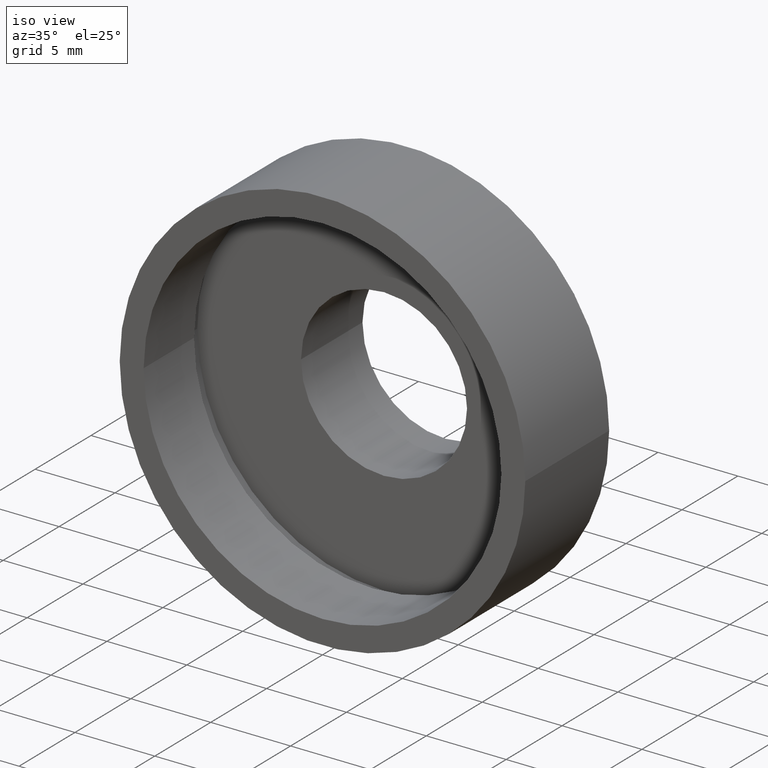
[diagram: clean part render]
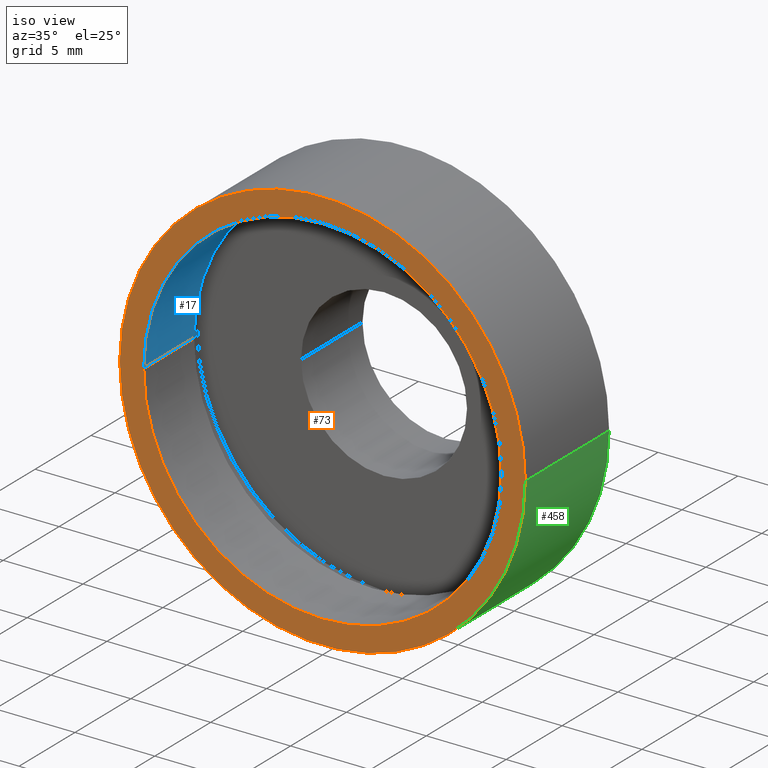
[diagram: same view with three faces highlighted in distinct colors, each labeled with its STEP entity id]
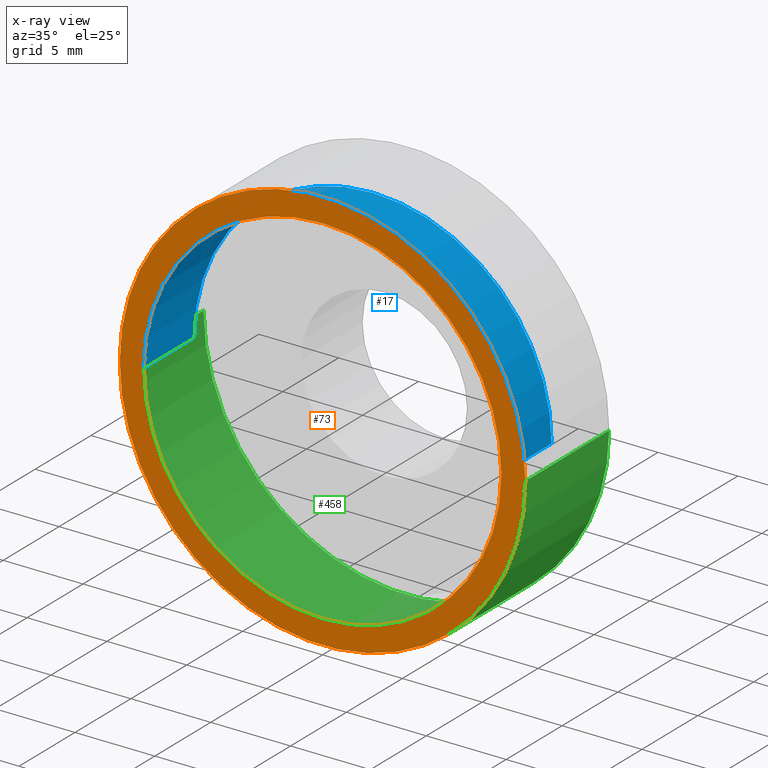
[diagram: x-ray of the same camera — body ghosted, the three highlighted faces saturated]
A machine part, iso view with three faces highlighted in distinct colors.
The next image is the same camera in x-ray (body ghosted, the three faces saturated) — at least one of them is partly hidden behind the body in this view.
Their STEP definitions:

[orange] entity #73 — the highlighted planar face has unit normal (-0, 1, 0).
#36 = CARTESIAN_POINT ( 'NONE',  ( 12.70000000000000500, -1.914145517036478500E-015, 1.555301434917138800E-015 ) ) ;
#51 = DIRECTION ( 'NONE',  ( -1.224646799147351000E-016, 1.000000000000000000, -0.0000000000000000000 ) ) ;
#58 = AXIS2_PLACEMENT_3D ( 'NONE', #191, #242, #511 ) ;
#73 = ADVANCED_FACE ( 'NONE', ( #519, #133 ), #309, .F. ) ;
#94 = CARTESIAN_POINT ( 'NONE',  ( 2.067940818438636500E-015, -3.469446951953614200E-015, 0.0000000000000000000 ) ) ;
#95 = VERTEX_POINT ( 'NONE', #107 ) ;
#104 = AXIS2_PLACEMENT_3D ( 'NONE', #215, #306, #152 ) ;
#107 = CARTESIAN_POINT ( 'NONE',  ( -12.69999999999999900, -5.024748386870749500E-015, 0.0000000000000000000 ) ) ;
#114 = AXIS2_PLACEMENT_3D ( 'NONE', #94, #249, #429 ) ;
#115 = EDGE_CURVE ( 'NONE', #457, #95, #551, .T. ) ;
#124 = VERTEX_POINT ( 'NONE', #322 ) ;
#133 = FACE_BOUND ( 'NONE', #504, .T. ) ;
#146 = CARTESIAN_POINT ( 'NONE',  ( -11.19999999999999800, -1.371604415045033100E-015, 0.0000000000000000000 ) ) ;
#152 = DIRECTION ( 'NONE',  ( -1.000000000000000000, -1.224646799147351000E-016, 0.0000000000000000000 ) ) ;
#170 = DIRECTION ( 'NONE',  ( -1.000000000000000000, -1.224646799147350700E-016, 0.0000000000000000000 ) ) ;
#172 = ORIENTED_EDGE ( 'NONE', *, *, #327, .T. ) ;
#191 = CARTESIAN_POINT ( 'NONE',  ( 2.067940818438636100E-015, 0.0000000000000000000, 0.0000000000000000000 ) ) ;
#201 = AXIS2_PLACEMENT_3D ( 'NONE', #260, #51, #263 ) ;
#215 = CARTESIAN_POINT ( 'NONE',  ( 12.70000000000000300, -1.061774417353046300E-015, 0.0000000000000000000 ) ) ;
#223 = CARTESIAN_POINT ( 'NONE',  ( 2.067940818438636500E-015, -3.469446951953614200E-015, 0.0000000000000000000 ) ) ;
#242 = DIRECTION ( 'NONE',  ( -1.224646799147351000E-016, 1.000000000000000000, -0.0000000000000000000 ) ) ;
#247 = AXIS2_PLACEMENT_3D ( 'NONE', #223, #584, #170 ) ;
#249 = DIRECTION ( 'NONE',  ( -1.224646799147351000E-016, 1.000000000000000000, -0.0000000000000000000 ) ) ;
#260 = CARTESIAN_POINT ( 'NONE',  ( 2.067940818438636100E-015, 0.0000000000000000000, 0.0000000000000000000 ) ) ;
#263 = DIRECTION ( 'NONE',  ( -1.000000000000000000, -1.224646799147351000E-016, 0.0000000000000000000 ) ) ;
#291 = ORIENTED_EDGE ( 'NONE', *, *, #477, .F. ) ;
#306 = DIRECTION ( 'NONE',  ( -1.224646799147351000E-016, 1.000000000000000000, 0.0000000000000000000 ) ) ;
#309 = PLANE ( 'NONE',  #104 ) ;
#322 = CARTESIAN_POINT ( 'NONE',  ( 11.20000000000000100, 1.371604415045033100E-015, 1.371604415045035500E-015 ) ) ;
#327 = EDGE_CURVE ( 'NONE', #475, #124, #454, .T. ) ;
#334 = ORIENTED_EDGE ( 'NONE', *, *, #557, .T. ) ;
#363 = CIRCLE ( 'NONE', #201, 11.19999999999999900 ) ;
#401 = ORIENTED_EDGE ( 'NONE', *, *, #115, .F. ) ;
#429 = DIRECTION ( 'NONE',  ( -1.000000000000000000, -1.224646799147350700E-016, 0.0000000000000000000 ) ) ;
#437 = EDGE_LOOP ( 'NONE', ( #291, #401 ) ) ;
#454 = CIRCLE ( 'NONE', #58, 11.19999999999999900 ) ;
#457 = VERTEX_POINT ( 'NONE', #36 ) ;
#475 = VERTEX_POINT ( 'NONE', #146 ) ;
#477 = EDGE_CURVE ( 'NONE', #95, #457, #556, .T. ) ;
#504 = EDGE_LOOP ( 'NONE', ( #172, #334 ) ) ;
#511 = DIRECTION ( 'NONE',  ( -1.000000000000000000, -1.224646799147351000E-016, 0.0000000000000000000 ) ) ;
#519 = FACE_OUTER_BOUND ( 'NONE', #437, .T. ) ;
#551 = CIRCLE ( 'NONE', #247, 12.70000000000000100 ) ;
#556 = CIRCLE ( 'NONE', #114, 12.70000000000000100 ) ;
#557 = EDGE_CURVE ( 'NONE', #124, #475, #363, .T. ) ;
#584 = DIRECTION ( 'NONE',  ( -1.224646799147351000E-016, 1.000000000000000000, -0.0000000000000000000 ) ) ;

[blue] entity #17 — the highlighted cylindrical surface (partial cylindrical patch) has radius 11.2 mm, axis along (-0, 1, -0).
#15 = VECTOR ( 'NONE', #207, 1000.000000000000000 ) ;
#17 = ADVANCED_FACE ( 'NONE', ( #571 ), #482, .F. ) ;
#31 = AXIS2_PLACEMENT_3D ( 'NONE', #206, #535, #303 ) ;
#38 = EDGE_CURVE ( 'NONE', #302, #102, #525, .T. ) ;
#49 = CARTESIAN_POINT ( 'NONE',  ( 1.516849758822328300E-015, 4.499999999999997300, 0.0000000000000000000 ) ) ;
#58 = AXIS2_PLACEMENT_3D ( 'NONE', #191, #242, #511 ) ;
#68 = AXIS2_PLACEMENT_3D ( 'NONE', #49, #431, #208 ) ;
#102 = VERTEX_POINT ( 'NONE', #445 ) ;
#124 = VERTEX_POINT ( 'NONE', #322 ) ;
#146 = CARTESIAN_POINT ( 'NONE',  ( -11.19999999999999800, -1.371604415045033100E-015, 0.0000000000000000000 ) ) ;
#191 = CARTESIAN_POINT ( 'NONE',  ( 2.067940818438636100E-015, 0.0000000000000000000, 0.0000000000000000000 ) ) ;
#206 = CARTESIAN_POINT ( 'NONE',  ( 0.0000000000000000000, 16.88601823708207700, 0.0000000000000000000 ) ) ;
#207 = DIRECTION ( 'NONE',  ( -1.224646799147351000E-016, 1.000000000000000000, -0.0000000000000000000 ) ) ;
#208 = DIRECTION ( 'NONE',  ( -1.000000000000000000, -1.548860246407863600E-016, 0.0000000000000000000 ) ) ;
#242 = DIRECTION ( 'NONE',  ( -1.224646799147351000E-016, 1.000000000000000000, -0.0000000000000000000 ) ) ;
#285 = ORIENTED_EDGE ( 'NONE', *, *, #38, .T. ) ;
#302 = VERTEX_POINT ( 'NONE', #550 ) ;
#303 = DIRECTION ( 'NONE',  ( -1.000000000000000000, 0.0000000000000000000, 0.0000000000000000000 ) ) ;
#322 = CARTESIAN_POINT ( 'NONE',  ( 11.20000000000000100, 1.371604415045033100E-015, 1.371604415045035500E-015 ) ) ;
#327 = EDGE_CURVE ( 'NONE', #475, #124, #454, .T. ) ;
#337 = LINE ( 'NONE', #528, #15 ) ;
#366 = ORIENTED_EDGE ( 'NONE', *, *, #327, .F. ) ;
#367 = ORIENTED_EDGE ( 'NONE', *, *, #463, .F. ) ;
#385 = CARTESIAN_POINT ( 'NONE',  ( 11.19999999999999900, 16.88601823708207700, 1.371604415045035500E-015 ) ) ;
#431 = DIRECTION ( 'NONE',  ( -1.224646799147351000E-016, 1.000000000000000000, -0.0000000000000000000 ) ) ;
#445 = CARTESIAN_POINT ( 'NONE',  ( 11.20000000000000100, 4.499999999999999100, 1.371604415045035500E-015 ) ) ;
#448 = LINE ( 'NONE', #385, #621 ) ;
#454 = CIRCLE ( 'NONE', #58, 11.19999999999999900 ) ;
#463 = EDGE_CURVE ( 'NONE', #124, #102, #448, .T. ) ;
#475 = VERTEX_POINT ( 'NONE', #146 ) ;
#482 = CYLINDRICAL_SURFACE ( 'NONE', #31, 11.19999999999999900 ) ;
#496 = EDGE_CURVE ( 'NONE', #475, #302, #337, .T. ) ;
#511 = DIRECTION ( 'NONE',  ( -1.000000000000000000, -1.224646799147351000E-016, 0.0000000000000000000 ) ) ;
#525 = CIRCLE ( 'NONE', #68, 11.19999999999999900 ) ;
#528 = CARTESIAN_POINT ( 'NONE',  ( -11.19999999999999900, 16.88601823708207700, 0.0000000000000000000 ) ) ;
#535 = DIRECTION ( 'NONE',  ( -1.224646799147351000E-016, 1.000000000000000000, -0.0000000000000000000 ) ) ;
#550 = CARTESIAN_POINT ( 'NONE',  ( -11.19999999999999800, 4.499999999999995600, 0.0000000000000000000 ) ) ;
#558 = EDGE_LOOP ( 'NONE', ( #367, #366, #559, #285 ) ) ;
#559 = ORIENTED_EDGE ( 'NONE', *, *, #496, .T. ) ;
#560 = DIRECTION ( 'NONE',  ( -1.224646799147351000E-016, 1.000000000000000000, -0.0000000000000000000 ) ) ;
#571 = FACE_OUTER_BOUND ( 'NONE', #558, .T. ) ;
#621 = VECTOR ( 'NONE', #560, 1000.000000000000000 ) ;

[green] entity #458 — the highlighted cylindrical surface (partial cylindrical patch) has radius 12.7 mm, axis along (-0, 1, -0).
#5 = EDGE_CURVE ( 'NONE', #372, #374, #180, .T. ) ;
#27 = ORIENTED_EDGE ( 'NONE', *, *, #5, .F. ) ;
#35 = ORIENTED_EDGE ( 'NONE', *, *, #509, .F. ) ;
#36 = CARTESIAN_POINT ( 'NONE',  ( 12.70000000000000500, -1.914145517036478500E-015, 1.555301434917138800E-015 ) ) ;
#45 = LINE ( 'NONE', #399, #544 ) ;
#88 = FACE_OUTER_BOUND ( 'NONE', #618, .T. ) ;
#93 = AXIS2_PLACEMENT_3D ( 'NONE', #566, #530, #158 ) ;
#95 = VERTEX_POINT ( 'NONE', #107 ) ;
#107 = CARTESIAN_POINT ( 'NONE',  ( -12.69999999999999900, -5.024748386870749500E-015, 0.0000000000000000000 ) ) ;
#115 = EDGE_CURVE ( 'NONE', #457, #95, #551, .T. ) ;
#128 = CARTESIAN_POINT ( 'NONE',  ( 12.70000000000000100, 7.499999999999998200, 1.555301434917138400E-015 ) ) ;
#131 = ORIENTED_EDGE ( 'NONE', *, *, #609, .T. ) ;
#139 = VECTOR ( 'NONE', #534, 1000.000000000000000 ) ;
#143 = DIRECTION ( 'NONE',  ( -1.000000000000000000, 0.0000000000000000000, 0.0000000000000000000 ) ) ;
#158 = DIRECTION ( 'NONE',  ( -1.000000000000000000, -1.365923996832131600E-016, 0.0000000000000000000 ) ) ;
#167 = AXIS2_PLACEMENT_3D ( 'NONE', #199, #472, #143 ) ;
#170 = DIRECTION ( 'NONE',  ( -1.000000000000000000, -1.224646799147350700E-016, 0.0000000000000000000 ) ) ;
#180 = CIRCLE ( 'NONE', #93, 12.69999999999999900 ) ;
#199 = CARTESIAN_POINT ( 'NONE',  ( 0.0000000000000000000, 16.88601823708207700, 0.0000000000000000000 ) ) ;
#223 = CARTESIAN_POINT ( 'NONE',  ( 2.067940818438636500E-015, -3.469446951953614200E-015, 0.0000000000000000000 ) ) ;
#247 = AXIS2_PLACEMENT_3D ( 'NONE', #223, #584, #170 ) ;
#323 = CYLINDRICAL_SURFACE ( 'NONE', #167, 12.69999999999999900 ) ;
#343 = ORIENTED_EDGE ( 'NONE', *, *, #115, .T. ) ;
#372 = VERTEX_POINT ( 'NONE', #128 ) ;
#374 = VERTEX_POINT ( 'NONE', #423 ) ;
#399 = CARTESIAN_POINT ( 'NONE',  ( -12.69999999999999900, 16.88601823708207700, 0.0000000000000000000 ) ) ;
#423 = CARTESIAN_POINT ( 'NONE',  ( -12.69999999999999800, 7.499999999999994700, 0.0000000000000000000 ) ) ;
#424 = LINE ( 'NONE', #619, #139 ) ;
#457 = VERTEX_POINT ( 'NONE', #36 ) ;
#458 = ADVANCED_FACE ( 'NONE', ( #88 ), #323, .T. ) ;
#472 = DIRECTION ( 'NONE',  ( -1.224646799147351000E-016, 1.000000000000000000, -0.0000000000000000000 ) ) ;
#509 = EDGE_CURVE ( 'NONE', #457, #372, #424, .T. ) ;
#523 = DIRECTION ( 'NONE',  ( -1.224646799147351000E-016, 1.000000000000000000, -0.0000000000000000000 ) ) ;
#530 = DIRECTION ( 'NONE',  ( -1.224646799147351000E-016, 1.000000000000000000, -0.0000000000000000000 ) ) ;
#534 = DIRECTION ( 'NONE',  ( -1.224646799147351000E-016, 1.000000000000000000, -0.0000000000000000000 ) ) ;
#544 = VECTOR ( 'NONE', #523, 1000.000000000000000 ) ;
#551 = CIRCLE ( 'NONE', #247, 12.70000000000000100 ) ;
#566 = CARTESIAN_POINT ( 'NONE',  ( 1.149455719078123100E-015, 7.499999999999996400, 0.0000000000000000000 ) ) ;
#584 = DIRECTION ( 'NONE',  ( -1.224646799147351000E-016, 1.000000000000000000, -0.0000000000000000000 ) ) ;
#609 = EDGE_CURVE ( 'NONE', #95, #374, #45, .T. ) ;
#618 = EDGE_LOOP ( 'NONE', ( #35, #343, #131, #27 ) ) ;
#619 = CARTESIAN_POINT ( 'NONE',  ( 12.69999999999999900, 16.88601823708207700, 1.555301434917138400E-015 ) ) ;